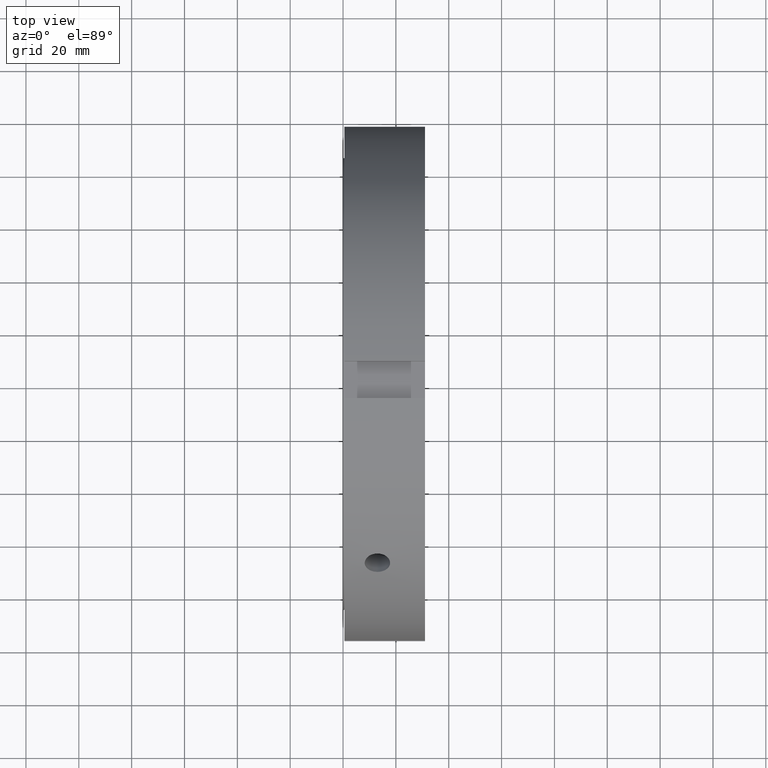
[diagram: clean part render]
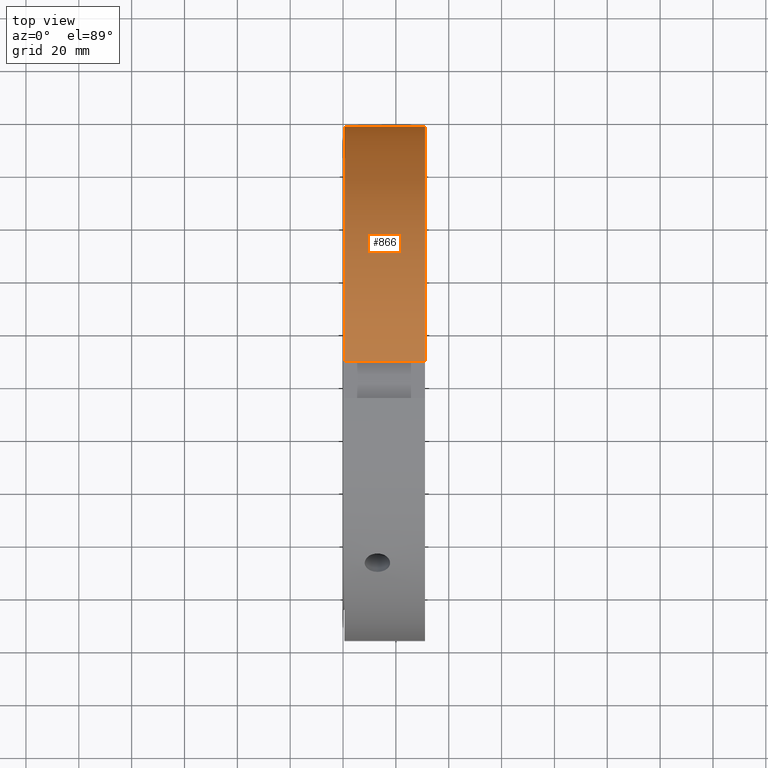
[diagram: same view with one face highlighted and labeled with its STEP entity id]
A machine part, top view. The second image highlights one B-rep face of the part: STEP entity #866.
In plain terms, the highlighted cylindrical surface (partial cylindrical patch) has radius 97.5 mm, axis along (1, 0, 0).
Its self-contained STEP definition (entity closure, byte-faithful):
#739=CARTESIAN_POINT('',(0.499999999999972,7.000000000000001,97.248393302923006));
#740=VERTEX_POINT('',#739);
#755=CARTESIAN_POINT('',(30.999999999999979,7.000000000000001,97.248393302923006));
#756=VERTEX_POINT('',#755);
#763=CARTESIAN_POINT('',(0.499999999999972,7.0,97.248393302923006));
#764=DIRECTION('',(1.0,0.0,0.0));
#765=VECTOR('',#764,30.500000000000007);
#766=LINE('',#763,#765);
#767=EDGE_CURVE('',#740,#756,#766,.T.);
#834=CARTESIAN_POINT('',(15.749999999999975,0.0,0.0));
#835=DIRECTION('',(1.0,0.0,0.0));
#836=DIRECTION('',(0.0,1.0,0.0));
#837=AXIS2_PLACEMENT_3D('',#834,#835,#836);
#838=CYLINDRICAL_SURFACE('',#837,97.5);
#839=ORIENTED_EDGE('',*,*,#767,.T.);
#840=CARTESIAN_POINT('',(30.999999999999979,97.248393302923006,6.999999999999995));
#841=VERTEX_POINT('',#840);
#842=CARTESIAN_POINT('',(30.999999999999979,0.0,0.0));
#843=DIRECTION('',(1.0,0.0,0.0));
#844=DIRECTION('',(0.0,1.0,0.0));
#845=AXIS2_PLACEMENT_3D('',#842,#843,#844);
#846=CIRCLE('',#845,97.5);
#847=EDGE_CURVE('',#841,#756,#846,.T.);
#848=ORIENTED_EDGE('',*,*,#847,.F.);
#849=CARTESIAN_POINT('',(0.499999999999972,97.248393302923006,6.999999999999995));
#850=VERTEX_POINT('',#849);
#851=CARTESIAN_POINT('',(30.999999999999979,97.248393302923006,6.999999999999995));
#852=DIRECTION('',(-1.0,0.0,0.0));
#853=VECTOR('',#852,30.500000000000007);
#854=LINE('',#851,#853);
#855=EDGE_CURVE('',#841,#850,#854,.T.);
#856=ORIENTED_EDGE('',*,*,#855,.T.);
#857=CARTESIAN_POINT('',(0.499999999999972,0.0,0.0));
#858=DIRECTION('',(1.0,0.0,0.0));
#859=DIRECTION('',(0.0,1.0,0.0));
#860=AXIS2_PLACEMENT_3D('',#857,#858,#859);
#861=CIRCLE('',#860,97.5);
#862=EDGE_CURVE('',#850,#740,#861,.T.);
#863=ORIENTED_EDGE('',*,*,#862,.T.);
#864=EDGE_LOOP('',(#839,#848,#856,#863));
#865=FACE_OUTER_BOUND('',#864,.T.);
#866=ADVANCED_FACE('',(#865),#838,.T.);